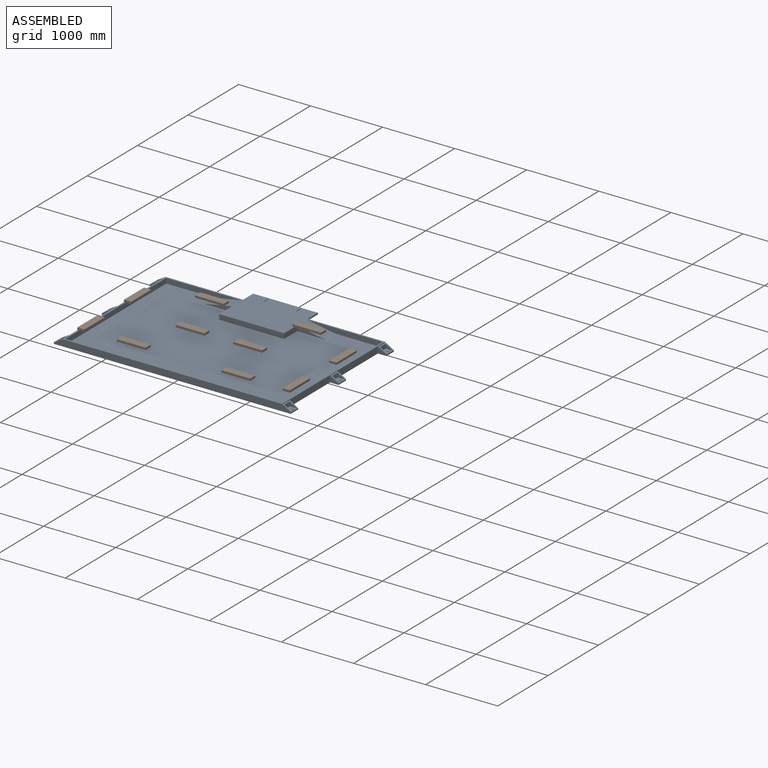
[diagram: assembled view]
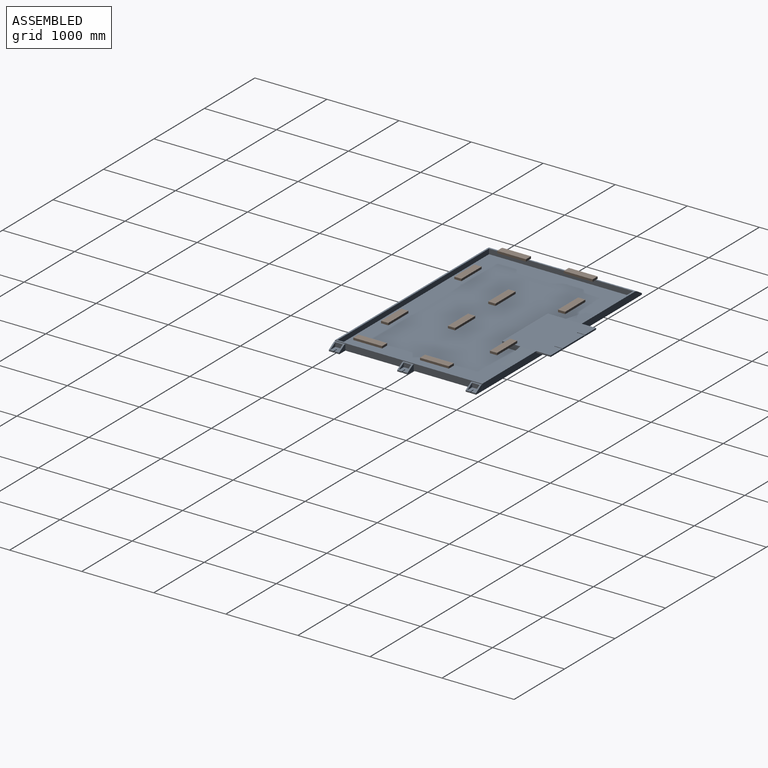
[diagram: assembled view, second angle]
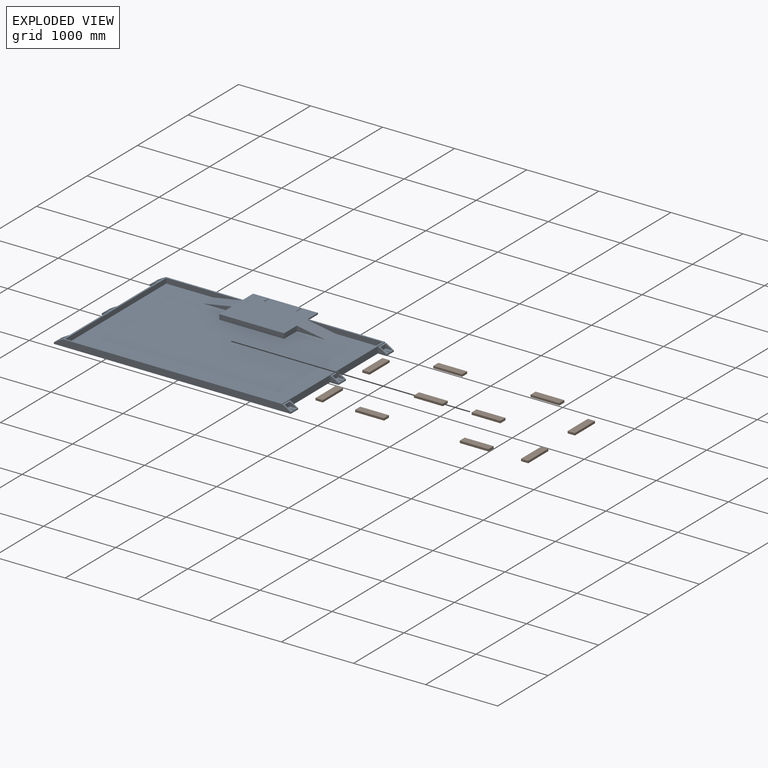
[diagram: exploded view]
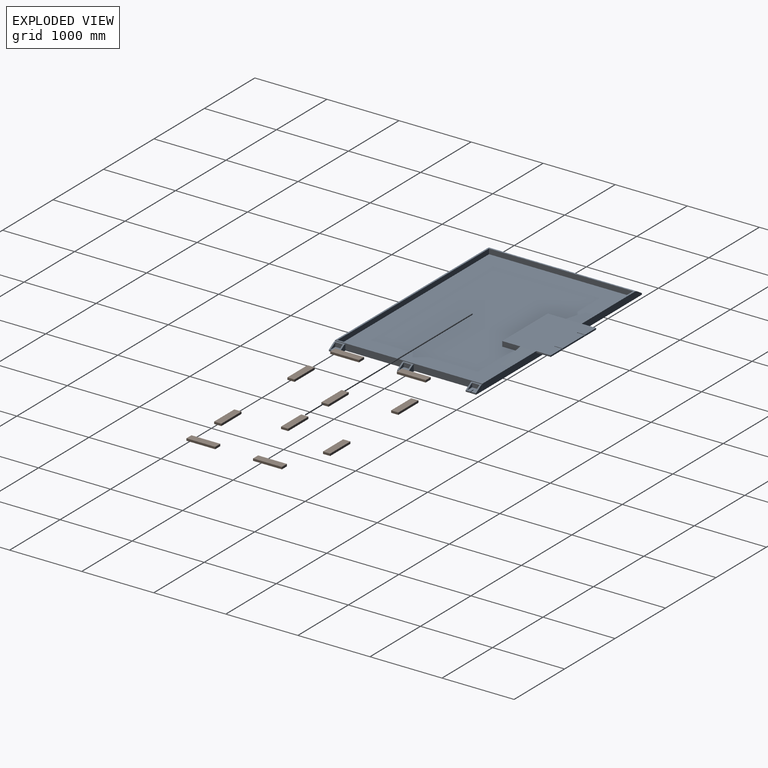
[diagram: exploded view, second angle]
FCSTD DOCUMENT  (FreeCAD 1.0R39109 (Git))
Label: Aire_de_jeu_2025_avec_robot
License: All rights reserved
LicenseURL: https://en.wikipedia.org/wiki/All_rights_reserved
objects: App::LinkElement×13, App::Link×10, Image::ImagePlane×5, Sketcher::SketchObject×5, PartDesign::Pad×5, PartDesign::Body×5, App::Part×5, Part::Feature×4, Mesh::Feature×1
note: 34 computed .brp shape members not serialized (recipe doc carries the construction recipe); baked Part::Feature solids carry a one-line shape summary decoded from their .brp
EXTERNAL_REF file=Robot_CRLG.FCStd obj=Part
EXTERNAL_REF file=banderole_2025.FCStd obj=Part013

FEATURE [Part::Feature] Part__Feature001  label="Marqueur d'identification"
  Placement = pos=(-302,0,0) rot=(0,0,1;0rad)
  shape: bbox 100 x 100 x 20 mm, 6 faces (baked)
FEATURE [Part::Feature] Part__Feature006  label="support balise"
  Placement = pos=(-1544,949,0) rot=(0,0,1;1.5708rad)
  shape: bbox 122 x 144 x 82 mm, 27 faces (baked)
FEATURE [Part::Feature] Part__Feature007  label="table"
  shape: bbox 3044 x 2044 x 92 mm, 11 faces (baked)
FEATURE [Part::Feature] Part__Feature008  label="support balise002"
  Placement = pos=(1544,949,0) rot=(0,0,1;-1.5708rad)
  shape: bbox 122 x 144 x 82 mm, 27 faces (baked)
FEATURE [App::Link] Link  label="support balise003"
  LinkPlacement = pos=(1544,-949,0) rot=(0,0,1;-1.5708rad)
  LinkedObject = -> Part__Feature008
  Placement = pos=(1544,-949,0) rot=(0,0,1;-1.5708rad)
FEATURE [App::Link] Link009  label="support balise005"
  LinkPlacement = pos=(-1544,0,0) rot=(0,0,1;1.5708rad)
  LinkedObject = -> Link
  Placement = pos=(-1544,0,0) rot=(0,0,1;1.5708rad)
FEATURE [Image::ImagePlane] Eurobot2025_Rules_17  label="Eurobot2025_beta"
  Placement = pos=(0,0,0) rot=(0,0,1;4.71239rad)
  XSize = 1999.41
  YSize = 3000.02
FEATURE [Mesh::Feature] open_tin_can
  Placement = pos=(0,0,0) rot=(-1,0,0;1.5708rad)
FEATURE [Sketcher::SketchObject] Sketch
  ArcFitTolerance = 1e-06
  AttachmentSupport = -> [XY_Plane017]
  FullyConstrained = true
  MakeInternals = false
  MapMode = 5
  sketch-geometry (4):
    g0: LineSegment StartX=-450 StartY=0 StartZ=0 EndX=-450 EndY=-450 EndZ=0
    g1: LineSegment StartX=-450 StartY=-450 StartZ=0 EndX=450 EndY=-450 EndZ=0
    g2: LineSegment StartX=450 StartY=-450 StartZ=0 EndX=450 EndY=0 EndZ=0
    g3: LineSegment StartX=450 StartY=0 StartZ=0 EndX=-450 EndY=0 EndZ=0
  constraints (11):
    c: Coincident(g0,g1)
    c: Coincident(g1,g2)
    c: Coincident(g2,g3)
    c: Coincident(g3,g0)
    c: Vertical(g0)
    c: Vertical(g2)
    c: Horizontal(g1)
    c: Horizontal(g3)
    c: Symmetric(g2,g0,g-1)
    c: DistanceX(g3,g3) = 900
    c: DistanceY(g0,g0) = 450
FEATURE [PartDesign::Pad] Pad
  Direction = (0,0,1)
  Length = 70
  Length2 = 10
  Profile = -> Sketch
  ReferenceAxis = -> Sketch [N_Axis]
  Suppressed = false
  Type = 0
FEATURE [PartDesign::Body] Body  label="scene"
  AllowCompound = false
  Group = -> [Sketch,Pad]
  Origin = -> Origin017
  Placement = pos=(0,1000,0) rot=(0,0,1;0rad)
  Tip = -> Pad
FEATURE [Sketcher::SketchObject] Sketch001
  ArcFitTolerance = 1e-06
  AttachmentSupport = -> [XZ_Plane018]
  FullyConstrained = true
  MakeInternals = false
  MapMode = 5
  Placement = pos=(0,0,0) rot=(1,0,0;1.5708rad)
  sketch-geometry (3):
    g0: LineSegment StartX=0 StartY=70 StartZ=0 EndX=-400 EndY=0 EndZ=0
    g1: LineSegment StartX=0 StartY=0 StartZ=0 EndX=-400 EndY=0 EndZ=0
    g2: LineSegment StartX=0 StartY=70 StartZ=0 EndX=0 EndY=0 EndZ=0
  constraints (8):
    c: PointOnObject(g0,g-2)
    c: PointOnObject(g0,g-1)
    c: Coincident(g1,g-1)
    c: Coincident(g1,g0)
    c: Coincident(g2,g0)
    c: Coincident(g2,g1)
    c: Distance(g2,g2) = 70
    c: DistanceX(g1,g1) = 400
FEATURE [PartDesign::Pad] Pad001
  Direction = (0,-1,2e-16)
  Length = 200
  Length2 = 10
  Placement = pos=(0,0,0) rot=(1,0,0;1.5708rad)
  Profile = -> Sketch001
  ReferenceAxis = -> Sketch001 [N_Axis]
  Suppressed = false
  Type = 0
FEATURE [PartDesign::Body] Body001  label="rampe"
  AllowCompound = false
  Group = -> [Sketch001,Pad001]
  Origin = -> Origin018
  Placement = pos=(-450,1000,0) rot=(0,0,1;0rad)
  Tip = -> Pad001
FEATURE [App::Link] Link010  label="rampe001"
  LinkPlacement = pos=(-0.0002,1800,0) rot=(0,0,1;3.14159rad)
  LinkTransform = true
  LinkedObject = -> Body001
  Placement = pos=(-0.0002,1800,0) rot=(0,0,1;3.14159rad)
FEATURE [App::LinkElement] Link011_i0
  LinkTransform = true
  LinkedObject = -> open_tin_can
  _LinkOwner = 1336
FEATURE [App::LinkElement] Link011_i1
  LinkPlacement = pos=(100,0,0) rot=(0,0,1;0rad)
  LinkTransform = true
  LinkedObject = -> open_tin_can
  Placement = pos=(100,0,0) rot=(0,0,1;0rad)
  _LinkOwner = 1336
FEATURE [App::LinkElement] Link011_i2
  LinkPlacement = pos=(200,0,0) rot=(0,0,1;0rad)
  LinkTransform = true
  LinkedObject = -> open_tin_can
  Placement = pos=(200,0,0) rot=(0,0,1;0rad)
  _LinkOwner = 1336
FEATURE [App::LinkElement] Link011_i3
  LinkPlacement = pos=(300,0,0) rot=(0,0,1;0rad)
  LinkTransform = true
  LinkedObject = -> open_tin_can
  Placement = pos=(300,0,0) rot=(0,0,1;0rad)
  _LinkOwner = 1336
FEATURE [App::Link] Link011  label="open_tin_can001"
  ElementCount = 4
  ElementList = -> [Link011_i0,Link011_i1,Link011_i2,Link011_i3]
  LinkPlacement = pos=(-150,0,0) rot=(0,0,1;0rad)
  LinkTransform = true
  LinkedObject = -> open_tin_can
  Placement = pos=(-150,0,0) rot=(0,0,1;0rad)
FEATURE [Sketcher::SketchObject] Sketch002
  ArcFitTolerance = 1e-06
  AttachmentSupport = -> [XY_Plane021]
  FullyConstrained = true
  MakeInternals = false
  MapMode = 5
  sketch-geometry (4):
    g0: LineSegment StartX=-200 StartY=50 StartZ=0 EndX=-200 EndY=-50 EndZ=0
    g1: LineSegment StartX=-200 StartY=-50 StartZ=0 EndX=200 EndY=-50 EndZ=0
    g2: LineSegment StartX=200 StartY=-50 StartZ=0 EndX=200 EndY=50 EndZ=0
    g3: LineSegment StartX=200 StartY=50 StartZ=0 EndX=-200 EndY=50 EndZ=0
  constraints (11):
    c: Coincident(g0,g1)
    c: Coincident(g1,g2)
    c: Coincident(g2,g3)
    c: Coincident(g3,g0)
    c: Vertical(g0)
    c: Vertical(g2)
    c: Horizontal(g1)
    c: Horizontal(g3)
    c: Symmetric(g2,g0,g-1)
    c: DistanceX(g3,g3) = 400
    c: DistanceY(g2,g2) = 100
FEATURE [PartDesign::Pad] Pad002
  Direction = (0,0,1)
  Length = 15
  Length2 = 10
  Profile = -> Sketch002
  ReferenceAxis = -> Sketch002 [N_Axis]
  Suppressed = false
  Type = 0
FEATURE [PartDesign::Body] Body002  label="plate-forme"
  AllowCompound = false
  Group = -> [Sketch002,Pad002]
  Origin = -> Origin021
  Tip = -> Pad002
FEATURE [App::LinkElement] Link012_i0
  LinkedObject = -> Body002
  _LinkOwner = 1359
FEATURE [App::LinkElement] Link012_i1
  LinkPlacement = pos=(0,0,15) rot=(0,0,1;0rad)
  LinkedObject = -> Body002
  Placement = pos=(0,0,15) rot=(0,0,1;0rad)
  _LinkOwner = 1359
FEATURE [App::Link] Link012  label="plate-forme001"
  ElementCount = 2
  ElementList = -> [Link012_i0,Link012_i1]
  LinkPlacement = pos=(0,0,109) rot=(0,0,1;0rad)
  LinkedObject = -> Body002
  Placement = pos=(0,0,109) rot=(0,0,1;0rad)
FEATURE [App::Part] Part012  label="colonne_plate-forme"
  Group = -> [Link011,Link012]
  Origin = -> Origin020
FEATURE [App::LinkElement] Link013_i0
  LinkPlacement = pos=(-675,725,0) rot=(0,0,1;0rad)
  LinkedObject = -> Part012
  Placement = pos=(-675,725,0) rot=(0,0,1;0rad)
  _LinkOwner = 1362
FEATURE [App::LinkElement] Link013_i1
  LinkPlacement = pos=(-1425,325,-5) rot=(0,0,1;1.5708rad)
  LinkedObject = -> Part012
  Placement = pos=(-1425,325,-5) rot=(0,0,1;1.5708rad)
  _LinkOwner = 1362
FEATURE [App::LinkElement] Link013_i2
  LinkPlacement = pos=(-400,-50,0) rot=(0,0,1;0rad)
  LinkedObject = -> Part012
  Placement = pos=(-400,-50,0) rot=(0,0,1;0rad)
  _LinkOwner = 1362
FEATURE [App::LinkElement] Link013_i3
  LinkPlacement = pos=(-1425,-600,0) rot=(0,0,1;1.5708rad)
  LinkedObject = -> Part012
  Placement = pos=(-1425,-600,0) rot=(0,0,1;1.5708rad)
  _LinkOwner = 1362
FEATURE [App::LinkElement] Link013_i4
  LinkPlacement = pos=(-725,-750,0) rot=(0,0,1;0rad)
  LinkedObject = -> Part012
  Placement = pos=(-725,-750,0) rot=(0,0,1;0rad)
  _LinkOwner = 1362
FEATURE [App::Link] Link013  label="colonne_plate-forme001"
  ElementCount = 5
  ElementList = -> [Link013_i0,Link013_i1,Link013_i2,Link013_i3,Link013_i4]
  LinkedObject = -> Part012
FEATURE [Sketcher::SketchObject] Sketch003
  ArcFitTolerance = 1e-06
  AttachmentSupport = -> [XY_Plane022]
  FullyConstrained = true
  MakeInternals = false
  MapMode = 5
  sketch-geometry (8):
    g0: LineSegment StartX=-225 StartY=100 StartZ=0 EndX=-225 EndY=-100 EndZ=0
    g1: LineSegment StartX=-225 StartY=-100 StartZ=0 EndX=225 EndY=-100 EndZ=0
    g2: LineSegment StartX=225 StartY=-100 StartZ=0 EndX=225 EndY=100 EndZ=0
    g3: LineSegment StartX=225 StartY=100 StartZ=0 EndX=5 EndY=100 EndZ=0
    g4: ArcOfCircle CenterX=-6.7e-15 CenterY=1.9218e-12 CenterZ=0 NormalX=0 NormalY=0 NormalZ=1 AngleXU=0 Radius=5 StartAngle=3.14159 EndAngle=6.28319
    g5: LineSegment StartX=5 StartY=100 StartZ=0 EndX=5 EndY=2.9985e-12 EndZ=0
    g6: LineSegment StartX=-5 StartY=100 StartZ=0 EndX=-5 EndY=1.705e-13 EndZ=0
    g7: LineSegment StartX=-5 StartY=100 StartZ=0 EndX=-225 EndY=100 EndZ=0
  constraints (22):
    c: Coincident(g0,g1)
    c: Coincident(g1,g2)
    c: Coincident(g2,g3)
    c: Coincident(g7,g0)
    c: Vertical(g0)
    c: Vertical(g2)
    c: Horizontal(g1)
    c: Horizontal(g3)
    c: Distance(g0,g2) = 450
    c: Distance(g1,g7) = 200
    c: Tangent(g4,g5) = 1.5708
    c: Tangent(g4,g6) = -1.5708
    c: Vertical(g6)
    c: Equal(g3,g7)
    c: Coincident(g3,g5)
    c: Coincident(g6,g7)
    c: Horizontal(g5,g6)
    c: Vertical(g5)
    c: Radius(g4) = 5
    c: DistanceY(g4,g6) = 100
    c: Horizontal(g7)
    c: Symmetric(g0,g2,g-1)
FEATURE [PartDesign::Pad] Pad003
  Direction = (0,0,1)
  Length = 20.1
  Length2 = 10
  Profile = -> Sketch003
  ReferenceAxis = -> Sketch003 [N_Axis]
  Suppressed = false
  Type = 0
FEATURE [PartDesign::Body] Body003  label="support_calc_1"
  AllowCompound = false
  Group = -> [Sketch003,Pad003]
  Origin = -> Origin022
  Placement = pos=(-225,1122,50) rot=(0,0,1;0rad)
  Tip = -> Pad003
FEATURE [Sketcher::SketchObject] Sketch004
  ArcFitTolerance = 1e-06
  AttachmentSupport = -> [XY_Plane036]
  FullyConstrained = true
  MakeInternals = false
  MapMode = 5
  sketch-geometry (8):
    g0: LineSegment StartX=-225 StartY=100 StartZ=0 EndX=-225 EndY=-100 EndZ=0
    g1: LineSegment StartX=-225 StartY=-100 StartZ=0 EndX=225 EndY=-100 EndZ=0
    g2: LineSegment StartX=225 StartY=-100 StartZ=0 EndX=225 EndY=100 EndZ=0
    g3: LineSegment StartX=225 StartY=100 StartZ=0 EndX=5 EndY=100 EndZ=0
    g4: ArcOfCircle CenterX=-6.7e-15 CenterY=1.9218e-12 CenterZ=0 NormalX=0 NormalY=0 NormalZ=1 AngleXU=0 Radius=5 StartAngle=3.14159 EndAngle=6.28319
    g5: LineSegment StartX=5 StartY=100 StartZ=0 EndX=5 EndY=2.9985e-12 EndZ=0
    g6: LineSegment StartX=-5 StartY=100 StartZ=0 EndX=-5 EndY=1.705e-13 EndZ=0
    g7: LineSegment StartX=-5 StartY=100 StartZ=0 EndX=-225 EndY=100 EndZ=0
  constraints (22):
    c: Coincident(g0,g1)
    c: Coincident(g1,g2)
    c: Coincident(g2,g3)
    c: Coincident(g7,g0)
    c: Vertical(g0)
    c: Vertical(g2)
    c: Horizontal(g1)
    c: Horizontal(g3)
    c: Distance(g0,g2) = 450
    c: Distance(g1,g7) = 200
    c: Tangent(g4,g5) = 1.5708
    c: Tangent(g4,g6) = -1.5708
    c: Vertical(g6)
    c: Equal(g3,g7)
    c: Coincident(g3,g5)
    c: Coincident(g6,g7)
    c: Horizontal(g5,g6)
    c: Vertical(g5)
    c: Radius(g4) = 5
    c: DistanceY(g4,g6) = 100
    c: Horizontal(g7)
    c: Symmetric(g0,g2,g-1)
FEATURE [PartDesign::Pad] Pad004
  Direction = (0,0,1)
  Length = 20.1
  Length2 = 10
  Profile = -> Sketch004
  ReferenceAxis = -> Sketch004 [N_Axis]
  Suppressed = false
  Type = 0
FEATURE [PartDesign::Body] Body004  label="support_calc_002"
  AllowCompound = false
  Group = -> [Sketch004,Pad004]
  Origin = -> Origin036
  Placement = pos=(225,1122,50) rot=(0,0,1;0rad)
  Tip = -> Pad004
FEATURE [App::Link] Link014  label="colonne_plate-forme002"
  LinkPlacement = pos=(0,0,0) rot=(1,0,0;3.14159rad)
  LinkedObject = -> Link013
  Placement = pos=(0,0,0) rot=(1,0,0;3.14159rad)
  Scale = -1
  ScaleVector = (-1,-1,-1)
FEATURE [App::Part] Part011  label="Elements_de_jeu"
  Group = -> [open_tin_can,Part012,Body002,Link013,Link014]
  Origin = -> Origin019
FEATURE [App::LinkElement] Link007_i0
  LinkedObject = -> Part__Feature006
  _LinkOwner = 1159
FEATURE [App::LinkElement] Link007_i1
  LinkPlacement = pos=(950,-3088,-4.76837e-07) rot=(0,0,1;3.14159rad)
  LinkedObject = -> Part__Feature006
  Placement = pos=(950,-3088,-4.76837e-07) rot=(0,0,1;3.14159rad)
  _LinkOwner = 1159
FEATURE [App::Link] Link007  label="support balise001"
  ElementCount = 2
  ElementList = -> [Link007_i0,Link007_i1]
  LinkPlacement = pos=(-1544,-950.001,0) rot=(0,0,1;1.5708rad)
  LinkedObject = -> Part__Feature006
  Placement = pos=(-1544,-950.001,0) rot=(0,0,1;1.5708rad)
FEATURE [App::Part] Part  label="Supports_balise"
  Group = -> [Link007,Part__Feature008,Link,Link009]
  Origin = -> Origin
FEATURE [App::Link] Link015  label="GROS_BOT_"
  LinkPlacement = pos=(-390.39,-214.95,5) rot=(0,0,-1;0rad)
  LinkedObject = -> <external Robot_CRLG.FCStd>#Part
  Placement = pos=(-390.39,-214.95,5) rot=(0,0,-1;0rad)
FEATURE [App::Link] Link016  label="Banderole"
  LinkPlacement = pos=(-155,-1022,65) rot=(0,0,1;0rad)
  LinkedObject = -> <external banderole_2025.FCStd>#Part013
  Placement = pos=(-155,-1022,65) rot=(0,0,1;0rad)
FEATURE [Image::ImagePlane] playmat_2025_FINAL_1  label="playmat_2025_FINAL-1"
  XSize = 3000.13
  YSize = 2000.13
FEATURE [Image::ImagePlane] game_elements_FINAL_1_scene  label="game_elements_FINAL-1_scene"
  Placement = pos=(0,775,70) rot=(0,0,1;0rad)
  XSize = 900.051
  YSize = 450.089
FEATURE [Image::ImagePlane] game_elements_FINAL_1_rampe_gauche  label="game_elements_FINAL-1_rampe_gauche"
  Placement = pos=(-650,900,35) rot=(0,1,0;-0.17366rad)
  XSize = 400.051
  YSize = 200.152
FEATURE [Image::ImagePlane] game_elements_FINAL_1_rampe_droite  label="game_elements_FINAL-1_rampe_droite"
  Placement = pos=(650,900,35) rot=(0,1,0;0.17366rad)
  XSize = 400.178
  YSize = 200.025
FEATURE [App::Part] Part010  label="composants_table"
  Group = -> [Part__Feature001,Part__Feature006,Part__Feature007,Part,Eurobot2025_Rules_17,Body,Body001,Link010,Body003,Body004,playmat_2025_FINAL_1,game_elements_FINAL_1_scene,game_elements_FINAL_1_rampe_gauche,game_elements_FINAL_1_rampe_droite]
  Origin = -> Origin016
FEATURE [App::Part] Part009  label="Plateau_2025"
  Group = -> [Part010]
  Origin = -> Origin015
  Placement = pos=(0,0,-5) rot=(0,0,1;0rad)
